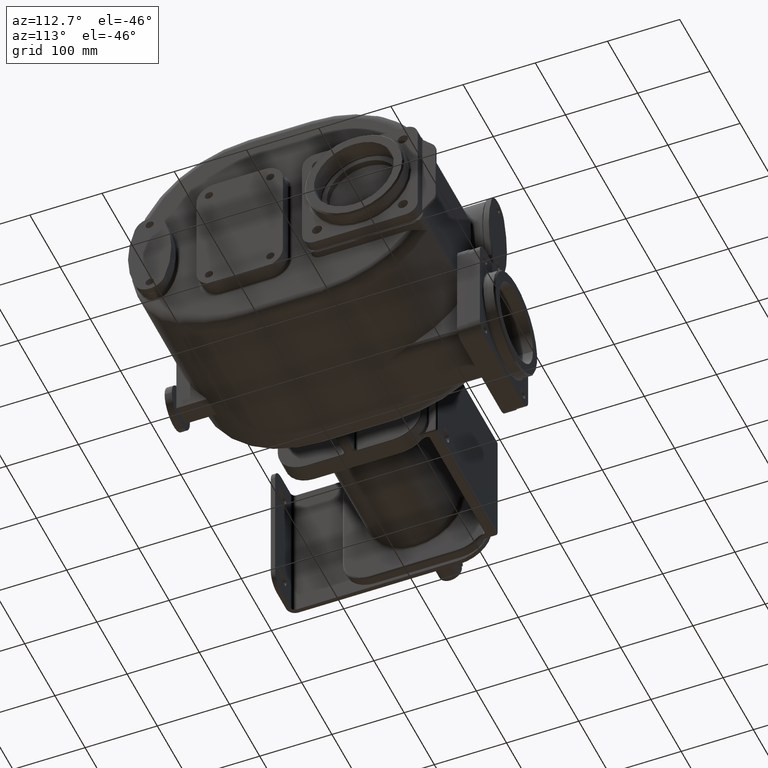
[diagram: clean part render]
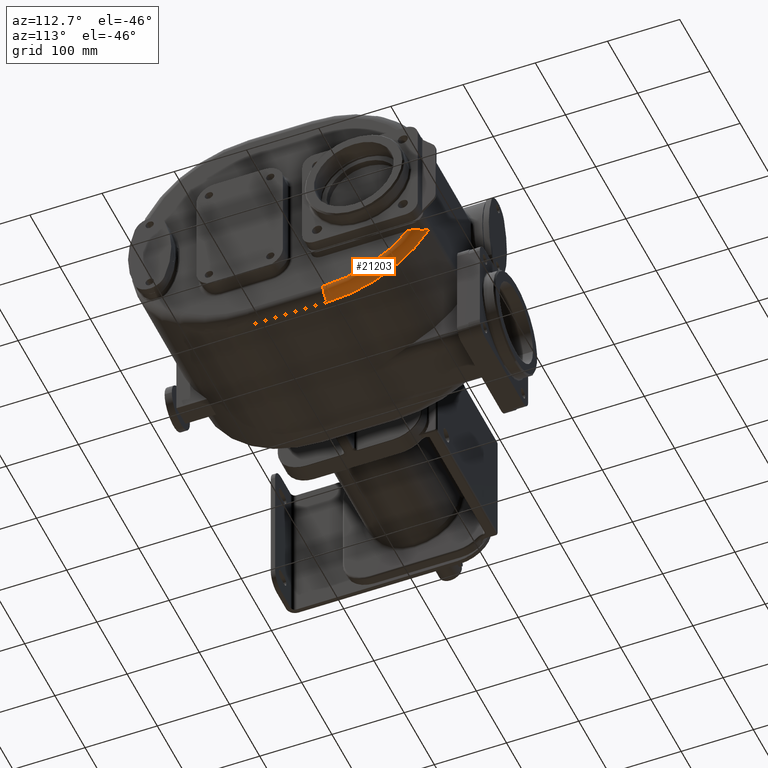
[diagram: same view with one face highlighted and labeled with its STEP entity id]
A machine part, auxiliary view. The second image highlights one B-rep face of the part: STEP entity #21203.
In plain terms, the highlighted toroidal blend (fillet) surface has major radius 152 mm and minor (blend) radius 15 mm.
Its self-contained STEP definition (entity closure, byte-faithful):
#5916=CARTESIAN_POINT('',(1.8E2,2.720156259538E2,0.E0));
#5917=DIRECTION('',(1.E0,0.E0,0.E0));
#5918=DIRECTION('',(0.E0,0.E0,-1.E0));
#5919=AXIS2_PLACEMENT_3D('',#5916,#5917,#5918);
#6275=CARTESIAN_POINT('',(1.65E2,2.720156259538E2,-1.52E2));
#6276=DIRECTION('',(0.E0,1.E0,0.E0));
#6277=DIRECTION('',(1.E0,0.E0,0.E0));
#6278=AXIS2_PLACEMENT_3D('',#6275,#6276,#6277);
#6280=CARTESIAN_POINT('',(1.8E2,3.890412641704E2,-9.7E1));
#6281=CARTESIAN_POINT('',(1.8E2,3.892858926722E2,-9.7E1));
#6282=CARTESIAN_POINT('',(1.799929133891E2,3.897731769536E2,-9.7E1));
#6283=CARTESIAN_POINT('',(1.799612619571E2,3.904989410273E2,-9.7E1));
#6284=CARTESIAN_POINT('',(1.799089443699E2,3.912172753622E2,-9.7E1));
#6285=CARTESIAN_POINT('',(1.798363078878E2,3.919277318364E2,-9.7E1));
#6286=CARTESIAN_POINT('',(1.797437704549E2,3.926290525235E2,-9.7E1));
#6287=CARTESIAN_POINT('',(1.796319210840E2,3.933195899015E2,-9.7E1));
#6288=CARTESIAN_POINT('',(1.795012118944E2,3.939989711572E2,-9.7E1));
#6289=CARTESIAN_POINT('',(1.793522451369E2,3.946660625156E2,-9.7E1));
#6290=CARTESIAN_POINT('',(1.791857481906E2,3.953196498632E2,-9.7E1));
#6291=CARTESIAN_POINT('',(1.790021880991E2,3.959596782811E2,-9.7E1));
#6292=CARTESIAN_POINT('',(1.788023213042E2,3.965850721380E2,-9.7E1));
#6293=CARTESIAN_POINT('',(1.785869192795E2,3.971950371984E2,-9.7E1));
#6294=CARTESIAN_POINT('',(1.783564385745E2,3.977896846831E2,-9.7E1));
#6295=CARTESIAN_POINT('',(1.781117502861E2,3.983680577856E2,-9.7E1));
#6296=CARTESIAN_POINT('',(1.778535282339E2,3.989298723995E2,-9.7E1));
#6297=CARTESIAN_POINT('',(1.775822754343E2,3.994751542441E2,-9.7E1));
#6298=CARTESIAN_POINT('',(1.773934902328E2,3.998269321052E2,-9.7E1));
#6299=CARTESIAN_POINT('',(1.772971468929E2,4.E2,-9.7E1));
#6301=CARTESIAN_POINT('',(1.772971468929E2,4.E2,-9.7E1));
#6302=CARTESIAN_POINT('',(1.772114566224E2,4.001539310837E2,-9.7E1));
#6303=CARTESIAN_POINT('',(1.770353038006E2,4.004639419114E2,-9.699526112648E1));
#6304=CARTESIAN_POINT('',(1.767565696932E2,4.009349619253E2,-9.697334135473E1));
#6305=CARTESIAN_POINT('',(1.764633773705E2,4.014111629761E2,-9.693604883630E1));
#6306=CARTESIAN_POINT('',(1.761559448080E2,4.018915259613E2,-9.688290855927E1));
#6307=CARTESIAN_POINT('',(1.758337969979E2,4.023761235209E2,-9.681333690140E1));
#6308=CARTESIAN_POINT('',(1.754969536174E2,4.028642211690E2,-9.672681558329E1));
#6309=CARTESIAN_POINT('',(1.751456609821E2,4.033548081784E2,-9.662292892822E1));
#6310=CARTESIAN_POINT('',(1.747798078072E2,4.038474039629E2,-9.650118463132E1));
#6311=CARTESIAN_POINT('',(1.743992274159E2,4.043415646365E2,-9.636105093741E1));
#6312=CARTESIAN_POINT('',(1.740043056770E2,4.048361296753E2,-9.620220779650E1));
#6313=CARTESIAN_POINT('',(1.735954786132E2,4.053299554581E2,-9.602442222021E1));
#6314=CARTESIAN_POINT('',(1.731724854650E2,4.058227425366E2,-9.582716868940E1));
#6315=CARTESIAN_POINT('',(1.727358923180E2,4.063132024189E2,-9.561029757085E1));
#6316=CARTESIAN_POINT('',(1.722864720669E2,4.067999124675E2,-9.537384319802E1));
#6317=CARTESIAN_POINT('',(1.718243398148E2,4.072822086166E2,-9.511753703808E1));
#6318=CARTESIAN_POINT('',(1.713499650598E2,4.077590472164E2,-9.484130995989E1));
#6319=CARTESIAN_POINT('',(1.708641965295E2,4.082290582228E2,-9.454536322328E1));
#6320=CARTESIAN_POINT('',(1.703678569181E2,4.086909864994E2,-9.422995617632E1));
#6321=CARTESIAN_POINT('',(1.698610918949E2,4.091442293507E2,-9.389494344784E1));
#6322=CARTESIAN_POINT('',(1.693450484918E2,4.095873000504E2,-9.354085937330E1));
#6323=CARTESIAN_POINT('',(1.688209648632E2,4.100187651878E2,-9.316840185424E1));
#6324=CARTESIAN_POINT('',(1.682892438684E2,4.104379400419E2,-9.277772557953E1));
#6325=CARTESIAN_POINT('',(1.677509307515E2,4.108436511514E2,-9.236947694835E1));
#6326=CARTESIAN_POINT('',(1.672072984619E2,4.112346496665E2,-9.194454759072E1));
#6327=CARTESIAN_POINT('',(1.666596350959E2,4.116097931808E2,-9.150392563112E1));
#6328=CARTESIAN_POINT('',(1.661083740768E2,4.119685826691E2,-9.104795471199E1));
#6329=CARTESIAN_POINT('',(1.655547185127E2,4.123100330308E2,-9.057762870441E1));
#6330=CARTESIAN_POINT('',(1.651850063056E2,4.125254220865E2,-9.025538651940E1));
#6331=CARTESIAN_POINT('',(1.65E2,4.126300369125E2,-9.009210526316E1));
#6342=CARTESIAN_POINT('',(1.65E2,2.720156259538E2,0.E0));
#6343=DIRECTION('',(1.E0,0.E0,0.E0));
#6344=DIRECTION('',(0.E0,0.E0,-1.E0));
#6345=AXIS2_PLACEMENT_3D('',#6342,#6343,#6344);
#11723=CARTESIAN_POINT('',(1.65E2,2.720156259538E2,-1.67E2));
#11724=CARTESIAN_POINT('',(1.65E2,4.126300369125E2,-9.009210526316E1));
#11725=VERTEX_POINT('',#11723);
#11726=VERTEX_POINT('',#11724);
#11727=CARTESIAN_POINT('',(1.8E2,2.720156259538E2,-1.52E2));
#11728=CARTESIAN_POINT('',(1.8E2,3.890412641704E2,-9.7E1));
#11729=VERTEX_POINT('',#11727);
#11730=VERTEX_POINT('',#11728);
#11748=VERTEX_POINT('',#6299);
#21190=CARTESIAN_POINT('',(1.65E2,2.720156259538E2,0.E0));
#21191=DIRECTION('',(-1.E0,0.E0,0.E0));
#21192=DIRECTION('',(0.E0,-7.744837511588E-3,-9.999700082962E-1));
#21193=AXIS2_PLACEMENT_3D('',#21190,#21191,#21192);
#21194=TOROIDAL_SURFACE('',#21193,1.52E2,1.5E1);
#21196=ORIENTED_EDGE('',*,*,#21195,.F.);
#21197=ORIENTED_EDGE('',*,*,#21182,.F.);
#21198=ORIENTED_EDGE('',*,*,#20848,.T.);
#21199=ORIENTED_EDGE('',*,*,#20623,.T.);
#21200=ORIENTED_EDGE('',*,*,#19746,.T.);
#21201=EDGE_LOOP('',(#21196,#21197,#21198,#21199,#21200));
#21202=FACE_OUTER_BOUND('',#21201,.F.);
#21203=ADVANCED_FACE('',(#21202),#21194,.T.);
#5920=CIRCLE('',#5919,1.52E2);
#6279=CIRCLE('',#6278,1.5E1);
#6300=B_SPLINE_CURVE_WITH_KNOTS('',3,(#6280,#6281,#6282,#6283,#6284,#6285,#6286,
#6287,#6288,#6289,#6290,#6291,#6292,#6293,#6294,#6295,#6296,#6297,#6298,#6299),
.UNSPECIFIED.,.F.,.F.,(4,1,1,1,1,1,1,1,1,1,1,1,1,1,1,1,1,4),(0.E0,
5.882352941176E-2,1.176470588235E-1,1.764705882353E-1,2.352941176471E-1,
2.941176470588E-1,3.529411764706E-1,4.117647058824E-1,4.705882352941E-1,
5.294117647059E-1,5.882352941176E-1,6.470588235294E-1,7.058823529412E-1,
7.647058823529E-1,8.235294117647E-1,8.823529411765E-1,9.411764705882E-1,1.E0),
.UNSPECIFIED.);
#6332=B_SPLINE_CURVE_WITH_KNOTS('',3,(#6301,#6302,#6303,#6304,#6305,#6306,#6307,
#6308,#6309,#6310,#6311,#6312,#6313,#6314,#6315,#6316,#6317,#6318,#6319,#6320,
#6321,#6322,#6323,#6324,#6325,#6326,#6327,#6328,#6329,#6330,#6331),
.UNSPECIFIED.,.F.,.F.,(4,1,1,1,1,1,1,1,1,1,1,1,1,1,1,1,1,1,1,1,1,1,1,1,1,1,1,1,
4),(0.E0,3.571428571429E-2,7.142857142857E-2,1.071428571429E-1,
1.428571428571E-1,1.785714285714E-1,2.142857142857E-1,2.5E-1,2.857142857143E-1,
3.214285714286E-1,3.571428571429E-1,3.928571428571E-1,4.285714285714E-1,
4.642857142857E-1,5.E-1,5.357142857143E-1,5.714285714286E-1,6.071428571429E-1,
6.428571428571E-1,6.785714285714E-1,7.142857142857E-1,7.5E-1,7.857142857143E-1,
8.214285714286E-1,8.571428571429E-1,8.928571428571E-1,9.285714285714E-1,
9.642857142857E-1,1.E0),.UNSPECIFIED.);
#6346=CIRCLE('',#6345,1.67E2);
#19746=EDGE_CURVE('',#11748,#11726,#6332,.T.);
#20623=EDGE_CURVE('',#11730,#11748,#6300,.T.);
#20848=EDGE_CURVE('',#11729,#11730,#5920,.T.);
#21182=EDGE_CURVE('',#11729,#11725,#6279,.T.);
#21195=EDGE_CURVE('',#11725,#11726,#6346,.T.);